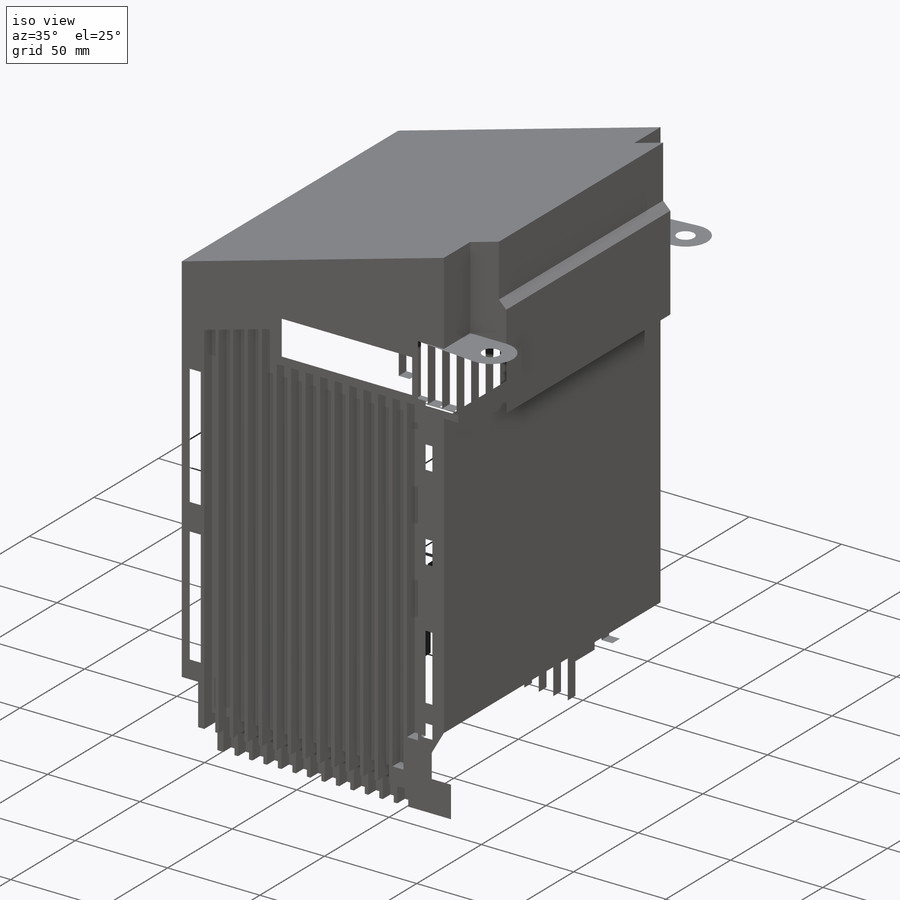
[diagram: iso view]
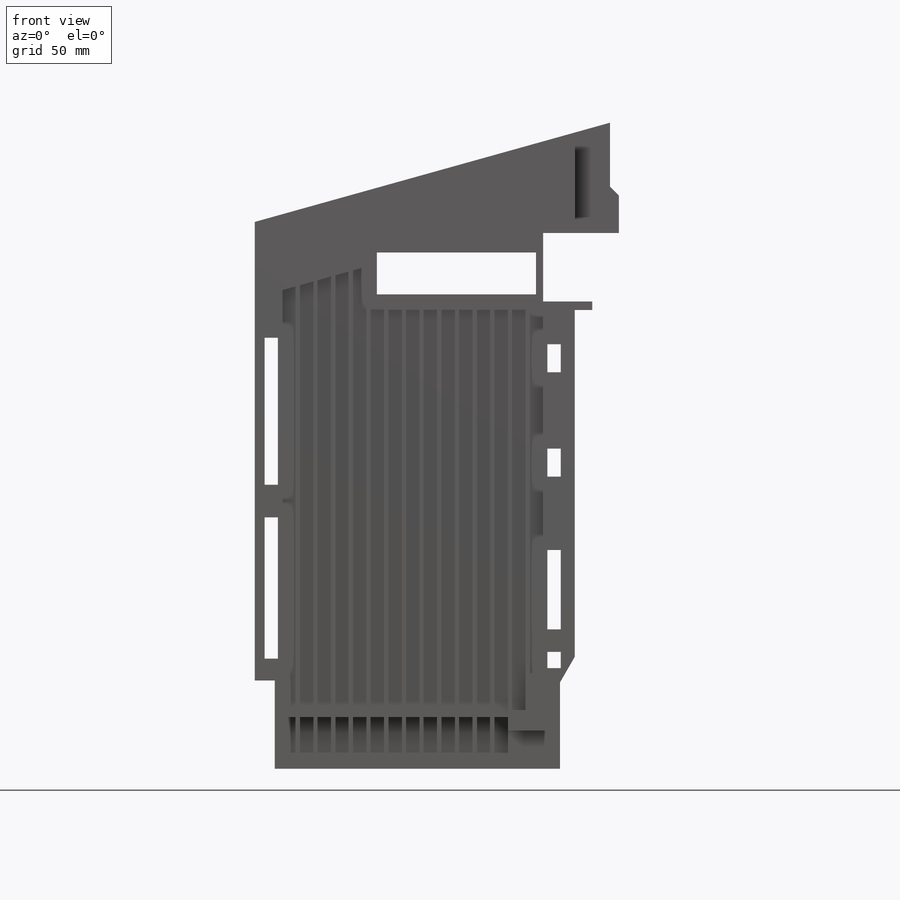
[diagram: front view]
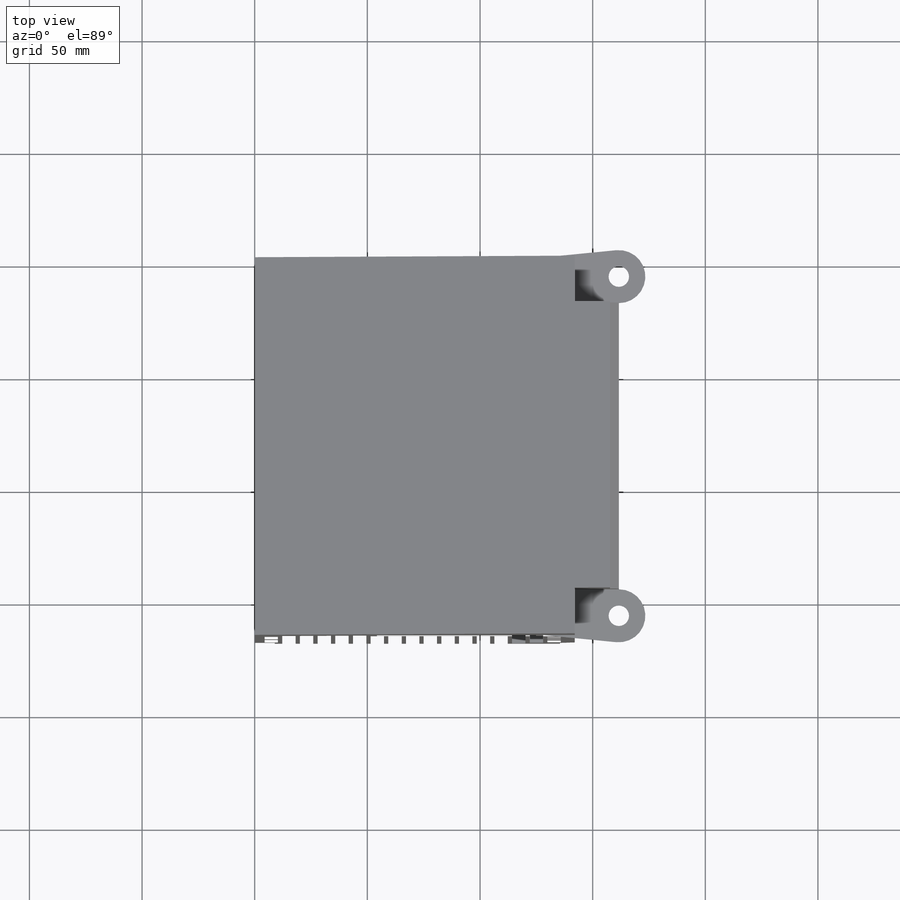
[diagram: top view]
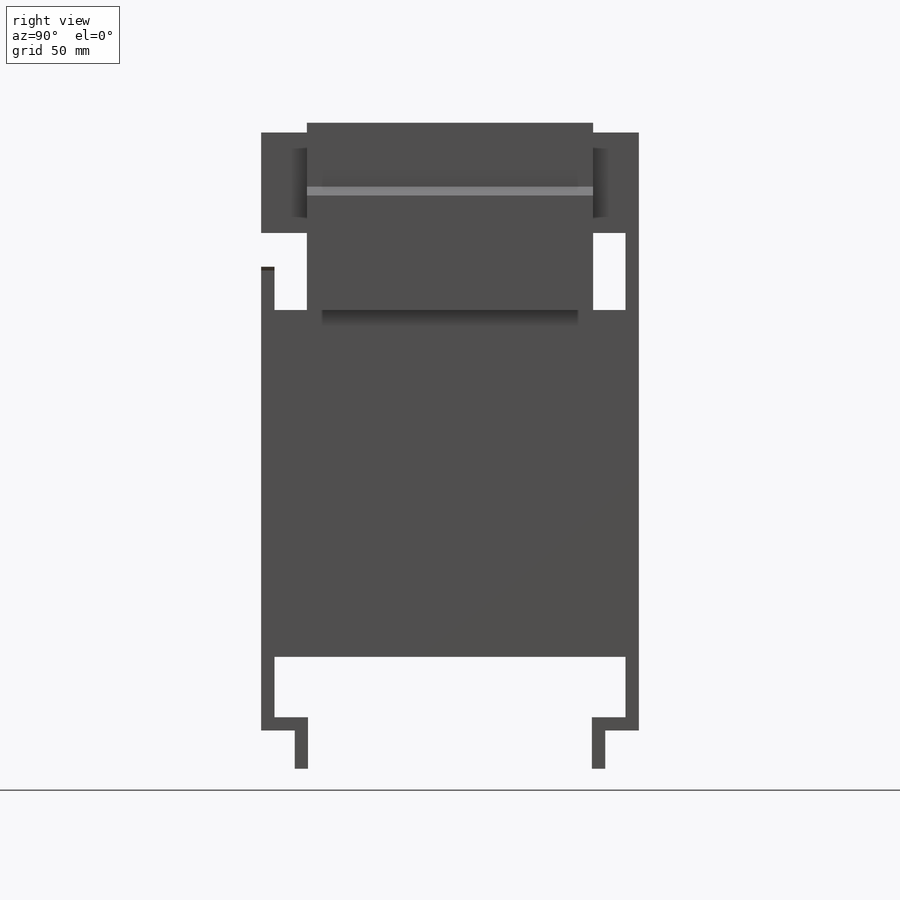
[diagram: right view]
SOLIDWORKS PART (.sldprt)
format: sldprt  version: not decoded by parser v0  size: 7,431,168 bytes
history: native  units: mm
features: sketch x47, cut_extrude x27, fillet x25, extrude x19, chamfer x2, material x1, plane x1, dome x1 (+16 scaffold rows collapsed)
feature tree (139):
  scaffold x16  (default folders/planes/origin — collapsed)
  material  "Material <not specified>"
  sketch  "Sketch1"  dims[c1.D1=142.0495mm c1.D2=225.7552mm c2.D1=203.5302mm c2.D3=265.43mm c2.D4=8.89mm c2.D5=22.225mm]
  extrude  "Extrude1"  Depth=167.64mm
  sketch  "Sketch41"  dims[D1=63.5mm D2=63.5mm D3=78.74mm D4=78.74mm]
  extrude  "Extrude36"  Depth=15.621mm
  sketch  "Sketch51"  dims[D1=50.8mm]
  extrude  "Extrude45"  Depth=3.937mm
  sketch  "Sketch42"
  sketch  "Sketch2"  dims[D1=14.8844mm D2=14.8844mm D3=~16.933333mm]
  extrude  "Extrude2"  [1 undecoded]
  chamfer  "Chamfer2"  Distance=3.937mm Angle=45deg
  sketch  "Sketch44"  dims[D1=34.1757mm D2=34.1757mm]
  extrude  "Extrude38"  [1 undecoded]
  plane  "Plane1"  Offset=3.7338mm
  sketch  "Sketch3"  dims[D5=5.8928mm D1=3.3274mm D2=~5.94106mm D3=1.905mm D4=~5.94106mm]
  cut_extrude  "Extrude4"  Depth=32.512mm
  sketch  "Sketch4"
  cut_extrude  "Extrude5"  Depth=189.3062mm
  sketch  "Sketch5"  dims[D1=0.0mm]
  cut_extrude  "Extrude6"  Depth=8.9789mm
  sketch  "Sketch6"  dims[D1=0.0mm]
  cut_extrude  "Extrude7"  Depth=25.4mm
  sketch  "Sketch7"  dims[D1=5.8928mm]
  cut_extrude  "Extrude8"  Depth=5.8928mm
  sketch  "Sketch11"  dims[D1=0.0mm D2=0.0mm D3=0.0mm D4=0.0mm D5=0.0mm D6=0.0mm D7=0.0mm D8=0.0mm D9=0.0mm D10=0.0mm D11=0.0mm D12=0.0mm D13=0.0mm]
  cut_extrude  "Extrude9"  [1 undecoded]
  sketch  "Sketch12"  dims[D1=0.0mm D2=0.0mm D3=0.0mm D4=0.0mm D5=0.0mm D6=0.0mm D7=0.0mm D8=0.0mm D9=0.0mm D10=0.0mm D11=0.0mm D12=0.0mm D13=0.0mm]
  cut_extrude  "Extrude10"  Depth=5.94106mm
  sketch  "Sketch18"  dims[D1=0.0mm D2=0.0mm D3=0.0mm D4=0.0mm D5=0.0mm D6=0.0mm D7=0.0mm D8=0.0mm D9=0.0mm D10=0.0mm D11=0.0mm D12=0.0mm D13=0.0mm]
  cut_extrude  "Extrude16"  [1 undecoded]
  sketch  "Sketch19"  dims[D1=0.0mm D2=0.0mm D3=0.0mm D4=0.0mm D5=0.0mm D6=0.0mm D7=0.0mm D8=0.0mm D9=~5.94106mm]
  cut_extrude  "Extrude17"  Depth=218.44mm
  sketch  "Sketch20"  dims[D1=0.0mm D2=0.0mm D3=0.0mm D4=0.0mm D5=0.0mm]
  cut_extrude  "Extrude18"  Depth=31.75mm
  sketch  "Sketch21"  dims[D1=0.0mm]
  cut_extrude  "Extrude19"  Depth=9.0678mm
  sketch  "Sketch22"  dims[D1=0.0mm]
  cut_extrude  "Extrude20"  Depth=27.7241mm
  sketch  "Sketch23"  dims[D1=0.0mm D2=7.1882mm D3=9.9949mm D4=35.2425mm D5=32.5755mm D6=12.4333mm D7=33.8709mm D8=12.4333mm]
  cut_extrude  "Extrude21"  [1 undecoded]
  sketch  "Sketch24"  dims[D1=0.0mm D2=9.7028mm D3=62.7126mm D4=14.4526mm D5=65.2526mm]
  cut_extrude  "Extrude22"  [1 undecoded]
  sketch  "Sketch26"  dims[D1=21.209mm D2=78.105mm]
  cut_extrude  "Extrude23"  [1 undecoded]
  sketch  "Sketch27"
  extrude  "Extrude24"  Depth=2.54mm
  sketch  "Sketch28"  dims[D1=1.905mm D2=1.905mm]
  extrude  "Extrude25"  [1 undecoded]
  sketch  "Sketch29"  dims[D2=1.5875mm D1=0.254mm]
  extrude  "Extrude26"  Depth=1.27mm
  sketch  "Sketch30"
  cut_extrude  "Extrude27"  Depth=0.254mm
  sketch  "Sketch32"  dims[D1=0.0mm D2=0.0mm D3=0.0mm D4=0.0mm D5=2.794mm D6=2.794mm]
  cut_extrude  "Extrude28"  Depth=5.94106mm
  sketch  "Sketch33"  dims[D1=0.0mm]
  cut_extrude  "Extrude29"  [1 undecoded]
  sketch  "Sketch35"  dims[D1=1.905mm D2=~5.94106mm D3=36.83mm D4=36.83mm D5=10.5029mm D6=10.5029mm]
  cut_extrude  "Extrude30"  [1 undecoded]
  sketch  "Sketch36"  dims[D1=29.8069mm D2=29.8069mm D3=6.985mm D4=25.4mm]
  cut_extrude  "Extrude31"  Depth=2.794mm
  sketch  "Sketch37"  dims[D4=23.622mm D1=53.975mm D2=44.45mm D3=44.45mm]
  extrude  "Extrude32"  Depth=1.27mm
  sketch  "Sketch38"  dims[D1=19.05mm D2=7.1247mm D3=7.1247mm]
  extrude  "Extrude33"  Depth=2.54mm
  sketch  "Sketch39"  dims[D1=9.2329mm]
  extrude  "Extrude34"  Depth=22.225mm
  chamfer  "Chamfer1"  Distance=5.08mm Angle=30deg
  dome  "Dome1"
  sketch  "Sketch40"  dims[c1.D2=~65.163761mm c2.D2=30.0deg c2.D1=21.3614mm]
  sketch  "Sketch52"  dims[D1=0.0mm]
  cut_extrude  "Extrude46"  Depth=6.5532mm
  sketch  "Sketch53"
  cut_extrude  "Extrude47"  Depth=6.985mm
  fillet  "Fillet31"  Radius=1.5875mm
  extrude  "Extrude37"  [1 undecoded]
  sketch  "Sketch45"  dims[D1=~11.77925mm]
  extrude  "Extrude39"  [1 undecoded]
  sketch  "Sketch46"
  cut_extrude  "Extrude40"  [1 undecoded]
  sketch  "Sketch47"  dims[D1=9.0551mm]
  cut_extrude  "Extrude41"  [1 undecoded]
  sketch  "Sketch49"  dims[D1=0.0mm D2=0.0mm D3=0.0mm D4=0.0mm D5=0.0mm D6=0.0mm]
  cut_extrude  "Extrude43"  [1 undecoded]
  sketch  "Sketch50"  dims[D1=4.318mm D2=4.6863mm D3=18.542mm D4=70.6374mm]
  cut_extrude  "Extrude44"  [1 undecoded]
  sketch  "Sketch54"  dims[c1.D1=181.8386mm c2.D1=~152.009467deg c3.D1=~12.329691mm c4.D1=120.0deg c5.D1=~22.66193mm c6.D1=30.0deg]
  cut_extrude  "Extrude48"  [1 undecoded]
  sketch  "Sketch55"  dims[D1=0.0mm D2=168.5163mm]
  extrude  "Extrude49"  Depth=4.7625mm
  sketch  "Sketch56"  dims[D1=0.0mm]
  extrude  "Extrude50"  Depth=2.9972mm
  sketch  "Sketch57"  dims[D1=0.0mm D2=96.7486mm]
  extrude  "Extrude51"  Depth=5.1562mm
  sketch  "Sketch58"  dims[D1=0.0mm]
  extrude  "Extrude52"  [1 undecoded]
  sketch  "Sketch59"
  extrude  "Extrude53"  Depth=1.016mm
  sketch  "Sketch60"  dims[c1.D2=12.7mm c1.D3=12.7mm c1.D4=12.7mm c1.D5=12.7mm c1.D1=0.0mm c2.D2=6.35mm c2.D3=2.8702mm c2.D4=2.8702mm c2.D5=2.8702mm c2.D6=2.8702mm]
  extrude  "Extrude54"  [1 undecoded]
  fillet  "Fillet22"  Radius=1.5875mm
  fillet  "Fillet25"  Radius=1.5875mm
  fillet  "Fillet1"  Radius=0.396875mm
  fillet  "Fillet2"  Radius=0.396875mm
  fillet  "Fillet3"  Radius=0.396875mm
  fillet  "Fillet4"  Radius=0.396875mm
  fillet  "Fillet5"  Radius=0.396875mm
  fillet  "Fillet6"  Radius=0.396875mm
  fillet  "Fillet7"  Radius=0.396875mm
  fillet  "Fillet8"  Radius=0.396875mm
  fillet  "Fillet9"  Radius=0.396875mm
  fillet  "Fillet11"  Radius=0.396875mm
  fillet  "Fillet12"  Radius=0.396875mm
  fillet  "Fillet13"  Radius=0.396875mm
  fillet  "Fillet15"  Radius=0.396875mm
  fillet  "Fillet16"  Radius=0.396875mm
  fillet  "Fillet19"  Radius=0.396875mm
  fillet  "Fillet20"  Radius=0.396875mm
  fillet  "Fillet21"  Radius=0.396875mm
  fillet  "Fillet26"  Radius=0.396875mm
  fillet  "Fillet27"  Radius=0.396875mm
  fillet  "Fillet28"  Radius=0.396875mm
  fillet  "Fillet29"  Radius=0.396875mm
  fillet  "Fillet30"  Radius=0.396875mm
decode coverage: 94 of 121 modeling features carry decoded parameters
note: ~ marks probable driven/reference dimensions
note: 19 parameter values undecoded
summary: no parameter record found for 19 features
note: suppression state not decoded; provenance and decode notes live in map.json
